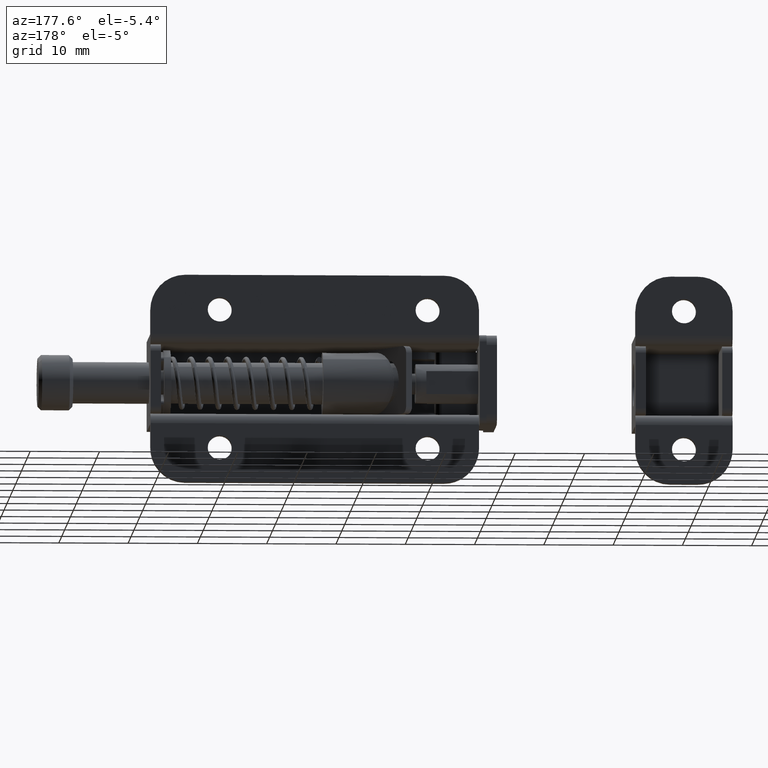
[diagram: clean part render]
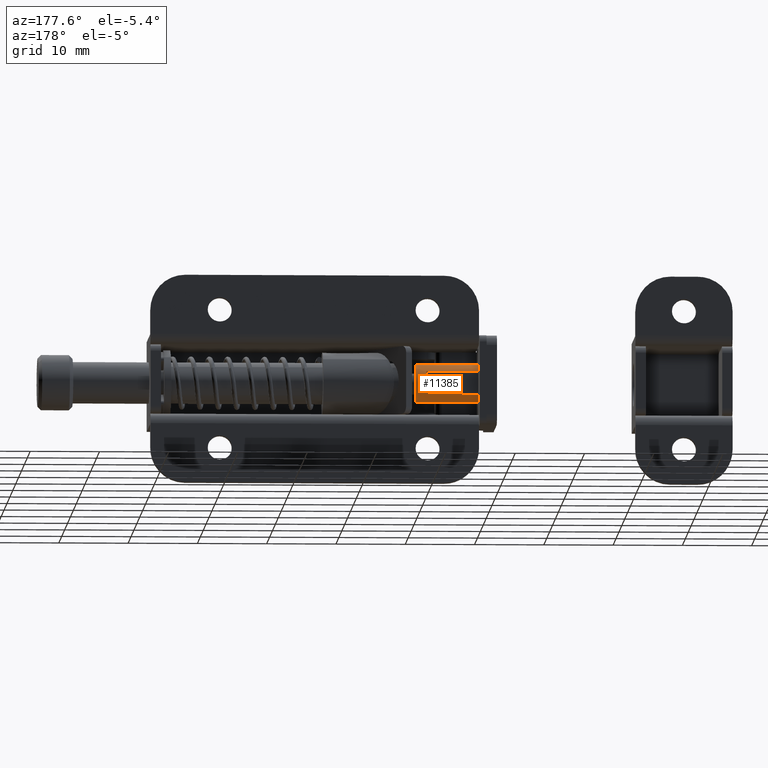
[diagram: same view with one face highlighted and labeled with its STEP entity id]
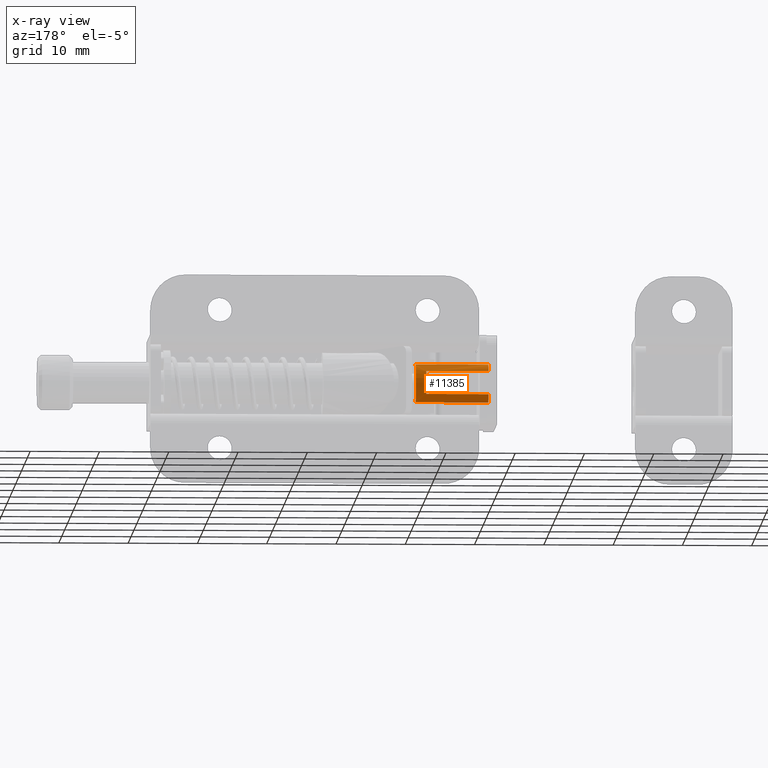
[diagram: x-ray of the same camera — body ghosted, the highlighted face saturated]
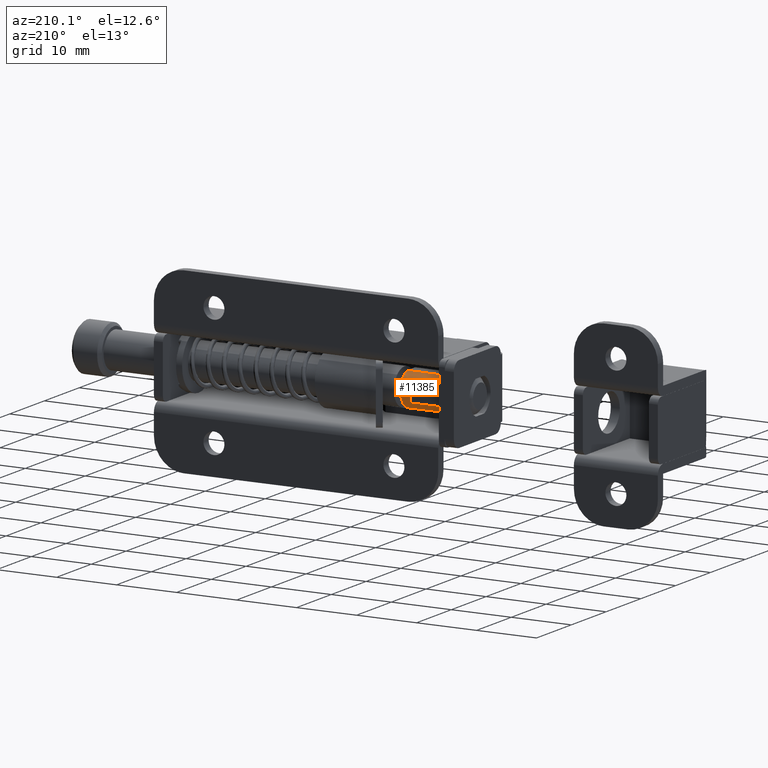
[diagram: same view with one face highlighted and labeled with its STEP entity id]
A machine part, auxiliary view. The second image highlights one B-rep face of the part: STEP entity #11385.
The next image is the same camera in x-ray: the body ghosted, the highlighted face saturated — about 0% of this face is hidden behind the body in this view.
A second angle (auxiliary view) of the same face is appended — the face is thin or edge-on in the first view.
In plain terms, the highlighted face is a freeform B-spline surface patch.
Its self-contained STEP definition (entity closure, byte-faithful):
#9472=CARTESIAN_POINT('',(1.0,1.198957880828180,2.750000000000000));
#9473=VERTEX_POINT('',#9472);
#9495=CARTESIAN_POINT('',(1.0,2.500000000000000,1.658312395177700));
#9496=VERTEX_POINT('',#9495);
#9497=CARTESIAN_POINT('',(1.0,2.500000000000000,1.658312395177700));
#9498=CARTESIAN_POINT('',(1.0,2.351345906564626,1.882578304845639));
#9499=CARTESIAN_POINT('',(1.000000000000000,1.969231233482625,2.317818070457910));
#9500=CARTESIAN_POINT('',(1.000000000000001,1.478542804228191,2.628263844649921));
#9501=CARTESIAN_POINT('',(1.0,1.198957880828180,2.750000000000000));
#9502=B_SPLINE_CURVE_WITH_KNOTS('',3,(#9497,#9498,#9499,#9500,#9501),.UNSPECIFIED.,.F.,.U.,(4,1,4),(0.000000011062209,0.807164664417565,1.721941842698059),.UNSPECIFIED.);
#9503=EDGE_CURVE('',#9496,#9473,#9502,.T.);
#9570=CARTESIAN_POINT('',(1.0,2.500000000000000,-1.658312395177700));
#9571=VERTEX_POINT('',#9570);
#9583=CARTESIAN_POINT('',(1.0,1.198957880828180,-2.750000000000000));
#9584=VERTEX_POINT('',#9583);
#9585=CARTESIAN_POINT('',(1.0,1.198957880828180,-2.750000000000000));
#9586=CARTESIAN_POINT('',(0.999999999999999,1.379827535845856,-2.671163754774961));
#9587=CARTESIAN_POINT('',(1.000000000000001,1.741668215610519,-2.468850058647715));
#9588=CARTESIAN_POINT('',(0.999999999999998,2.177180880013481,-2.089903753782639));
#9589=CARTESIAN_POINT('',(1.000000000000002,2.410770760802410,-1.792838634236239));
#9590=CARTESIAN_POINT('',(1.0,2.500000000000000,-1.658312395177700));
#9591=B_SPLINE_CURVE_WITH_KNOTS('',3,(#9585,#9586,#9587,#9588,#9589,#9590),.UNSPECIFIED.,.F.,.U.,(4,1,1,4),(0.000000011062134,0.591921400383929,1.237645251406359,1.721941842698059),.UNSPECIFIED.);
#9592=EDGE_CURVE('',#9584,#9571,#9591,.T.);
#11012=CARTESIAN_POINT('',(11.500000000000000,1.198957880828180,-2.750000000000000));
#11013=VERTEX_POINT('',#11012);
#11027=CARTESIAN_POINT('',(11.500000000000000,1.198957880828180,-2.750000000000000));
#11028=CARTESIAN_POINT('',(1.0,1.198957880828180,-2.750000000000000));
#11029=QUASI_UNIFORM_CURVE('',1,(#11027,#11028),.UNSPECIFIED.,.F.,.U.);
#11030=EDGE_CURVE('',#11013,#9584,#11029,.T.);
#11040=CARTESIAN_POINT('',(11.500000000000000,1.198957880828180,2.750000000000000));
#11041=VERTEX_POINT('',#11040);
#11049=CARTESIAN_POINT('',(1.0,1.198957880828180,2.750000000000000));
#11050=CARTESIAN_POINT('',(11.500000000000000,1.198957880828180,2.750000000000000));
#11051=QUASI_UNIFORM_CURVE('',1,(#11049,#11050),.UNSPECIFIED.,.F.,.U.);
#11052=EDGE_CURVE('',#9473,#11041,#11051,.T.);
#11068=CARTESIAN_POINT('',(10.0,2.500000000000000,1.658312395177700));
#11069=VERTEX_POINT('',#11068);
#11070=CARTESIAN_POINT('',(10.0,2.500000000000000,-1.658312395177700));
#11071=VERTEX_POINT('',#11070);
#11077=CARTESIAN_POINT('',(1.0,2.500000000000000,-1.658312395177700));
#11078=CARTESIAN_POINT('',(10.0,2.500000000000000,-1.658312395177700));
#11079=QUASI_UNIFORM_CURVE('',1,(#11077,#11078),.UNSPECIFIED.,.F.,.U.);
#11080=EDGE_CURVE('',#9571,#11071,#11079,.T.);
#11084=CARTESIAN_POINT('',(10.0,2.500000000000000,1.658312395177700));
#11085=CARTESIAN_POINT('',(1.0,2.500000000000000,1.658312395177700));
#11086=QUASI_UNIFORM_CURVE('',1,(#11084,#11085),.UNSPECIFIED.,.F.,.U.);
#11087=EDGE_CURVE('',#11069,#9496,#11086,.T.);
#11097=CARTESIAN_POINT('',(10.0,2.500000000000000,1.658312395177700));
#11098=CARTESIAN_POINT('',(9.999999999999996,2.692451570459038,1.368633541153934));
#11099=CARTESIAN_POINT('',(9.999999999999991,2.937488710264375,0.806585877624946));
#11100=CARTESIAN_POINT('',(10.000000000000011,3.018330116789398,0.072895189271882));
#11101=CARTESIAN_POINT('',(9.999999999999993,2.973005218258549,-0.475448142435421));
#11102=CARTESIAN_POINT('',(9.999999999999991,2.843929997295751,-1.029938514116666));
#11103=CARTESIAN_POINT('',(10.0,2.651848532073982,-1.429575527725556));
#11104=CARTESIAN_POINT('',(10.0,2.500000000000000,-1.658312395177700));
#11105=B_SPLINE_CURVE_WITH_KNOTS('',3,(#11097,#11098,#11099,#11100,#11101,#11102,#11103,#11104),.UNSPECIFIED.,.F.,.U.,(4,1,1,1,1,4),(0.000000040501019,1.043271240230444,1.811980847139402,2.196349695967820,2.690531035740969,3.514162303915893),.UNSPECIFIED.);
#11106=EDGE_CURVE('',#11069,#11071,#11105,.T.);
#11206=CARTESIAN_POINT('',(11.500000000000000,1.198957880828180,2.750000000000000));
#11207=CARTESIAN_POINT('',(11.499999999999980,1.481411564788875,2.627043387346594));
#11208=CARTESIAN_POINT('',(11.500000000000041,1.883811269748533,2.371514156470560));
#11209=CARTESIAN_POINT('',(11.499999999999989,2.364773480811830,1.875575876700274));
#11210=CARTESIAN_POINT('',(11.500000000000000,2.734370098402422,1.311436456989119));
#11211=CARTESIAN_POINT('',(11.499999999999970,2.951429646776658,0.669670452775140));
#11212=CARTESIAN_POINT('',(11.500000000000099,3.018267003504461,0.000316096661349));
#11213=CARTESIAN_POINT('',(11.499999999999780,2.968802245783795,-0.544225441971969));
#11214=CARTESIAN_POINT('',(11.500000000000220,2.787450141604021,-1.173105648636688));
#11215=CARTESIAN_POINT('',(11.500000000000011,2.481539886257973,-1.735298877489362));
#11216=CARTESIAN_POINT('',(11.499999999999810,1.944911038068800,-2.330336258033646));
#11217=CARTESIAN_POINT('',(11.500000000000210,1.498030200973076,-2.619813624252725));
#11218=CARTESIAN_POINT('',(11.500000000000000,1.198957880828180,-2.750000000000000));
#11219=B_SPLINE_CURVE_WITH_KNOTS('',3,(#11206,#11207,#11208,#11209,#11210,#11211,#11212,#11213,#11214,#11215,#11216,#11217,#11218),.UNSPECIFIED.,.F.,.U.,(4,1,1,1,1,1,1,1,1,1,4),(0.000000099660662,0.924097210885436,1.413344760980898,2.065675828269089,2.935442301858622,3.424673445118705,4.076970751569078,4.566203487578544,5.381618364052335,5.979573829953470,6.958045960673152),.UNSPECIFIED.);
#11220=EDGE_CURVE('',#11041,#11013,#11219,.T.);
#11357=CARTESIAN_POINT('',(11.762499999999999,1.121078048996209,-2.782657723842235));
#11358=CARTESIAN_POINT('',(0.730937500000000,1.121078048996209,-2.782657723842235));
#11359=CARTESIAN_POINT('',(11.762500000000001,3.051476399869535,-2.004938208272642));
#11360=CARTESIAN_POINT('',(0.730937499999999,3.051476399869535,-2.004938208272642));
#11361=CARTESIAN_POINT('',(11.762499999999999,2.999047909846704,0.075575356063383));
#11362=CARTESIAN_POINT('',(0.730937500000000,2.999047909846704,0.075575356063383));
#11363=CARTESIAN_POINT('',(11.762500000000001,2.946619419823872,2.156088920399408));
#11364=CARTESIAN_POINT('',(0.730937499999999,2.946619419823872,2.156088920399408));
#11365=CARTESIAN_POINT('',(11.762499999999999,0.979499380561977,2.835591818911653));
#11366=CARTESIAN_POINT('',(0.730937500000000,0.979499380561977,2.835591818911653));
#11374=(BOUNDED_SURFACE()B_SPLINE_SURFACE(1,2,((#11357,#11359,#11361,#11363,#11365),(#11358,#11360,#11362,#11364,#11366)),.UNSPECIFIED.,.F.,.F.,.U.)B_SPLINE_SURFACE_WITH_KNOTS((2,2),(3,2,3),(0.0,11.031562500000000),(0.0,3.754822632580189,7.509645265160378),.UNSPECIFIED.)GEOMETRIC_REPRESENTATION_ITEM()RATIONAL_B_SPLINE_SURFACE(((1.0,0.821646937942164,1.0,0.821646937942164,1.0),(1.0,0.821646937942164,1.0,0.821646937942164,1.0)))REPRESENTATION_ITEM('')SURFACE());
#11375=ORIENTED_EDGE('',*,*,#11220,.T.);
#11376=ORIENTED_EDGE('',*,*,#11030,.T.);
#11377=ORIENTED_EDGE('',*,*,#9592,.T.);
#11378=ORIENTED_EDGE('',*,*,#11080,.T.);
#11379=ORIENTED_EDGE('',*,*,#11106,.F.);
#11380=ORIENTED_EDGE('',*,*,#11087,.T.);
#11381=ORIENTED_EDGE('',*,*,#9503,.T.);
#11382=ORIENTED_EDGE('',*,*,#11052,.T.);
#11383=EDGE_LOOP('',(#11375,#11376,#11377,#11378,#11379,#11380,#11381,#11382));
#11384=FACE_OUTER_BOUND('',#11383,.T.);
#11385=ADVANCED_FACE('',(#11384),#11374,.T.);